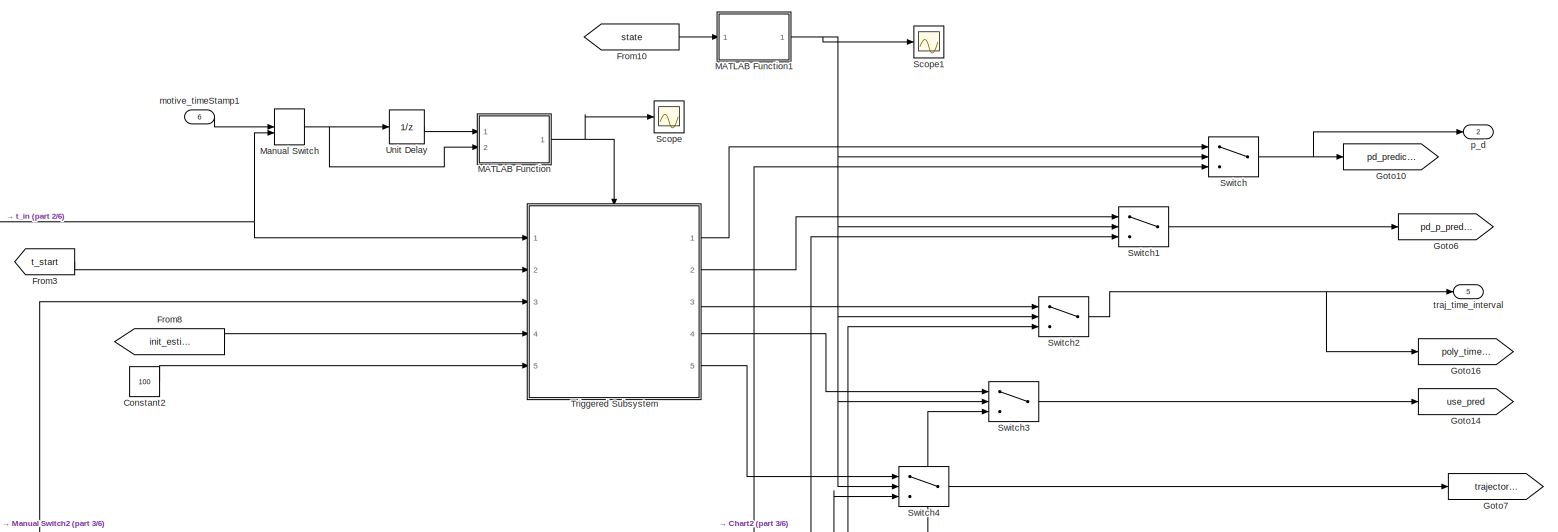
[diagram: root canvas - part 1/6, top center region]
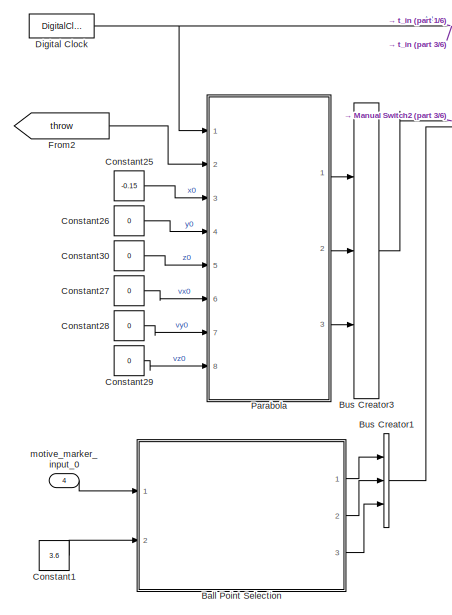
[diagram: root canvas - part 2/6, middle left region]
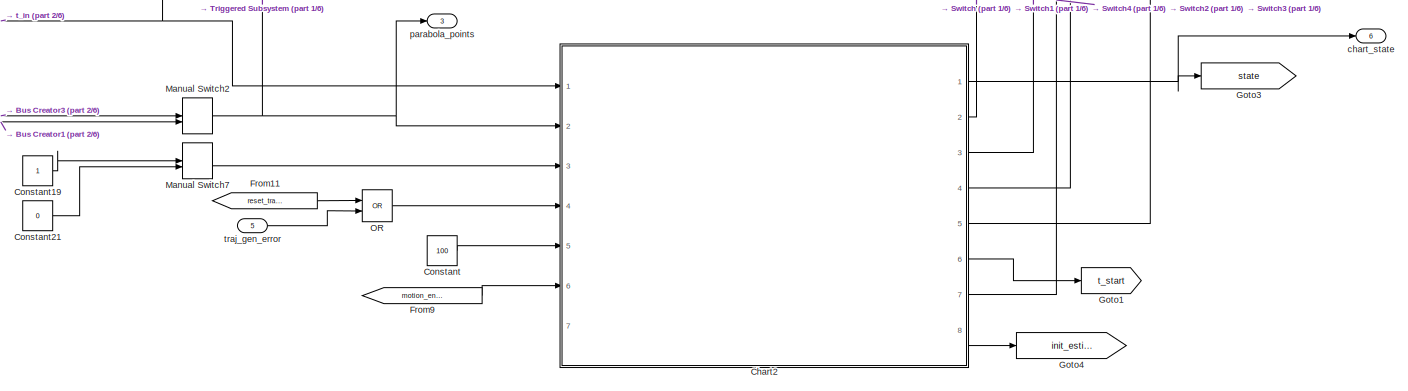
[diagram: root canvas - part 3/6, central region]
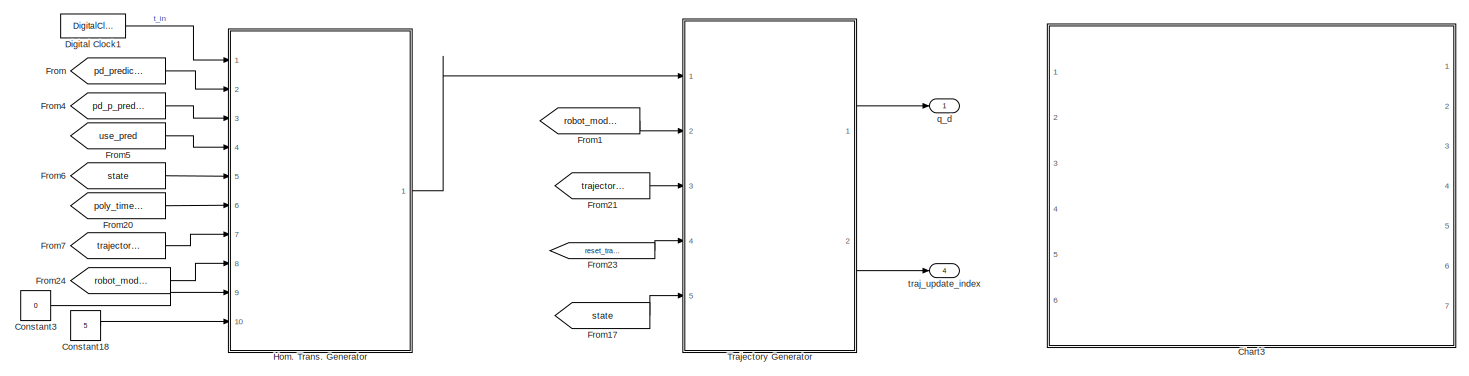
[diagram: root canvas - part 4/6, central region]
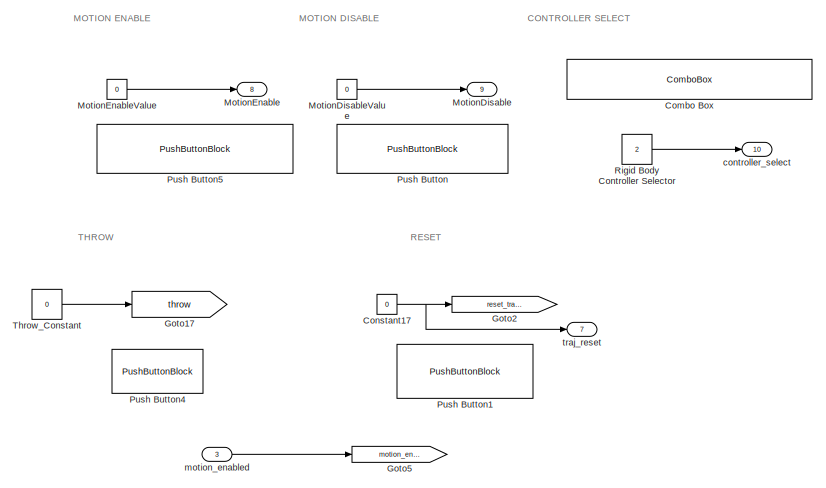
[diagram: root canvas - part 5/6, bottom center region]
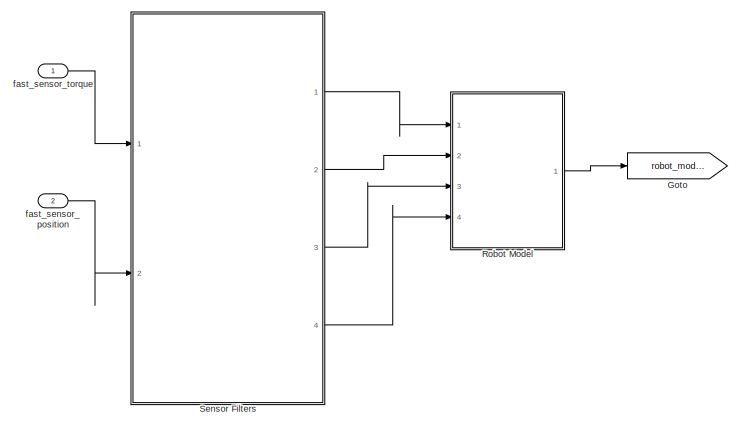
[diagram: root canvas - part 6/6, bottom left region]
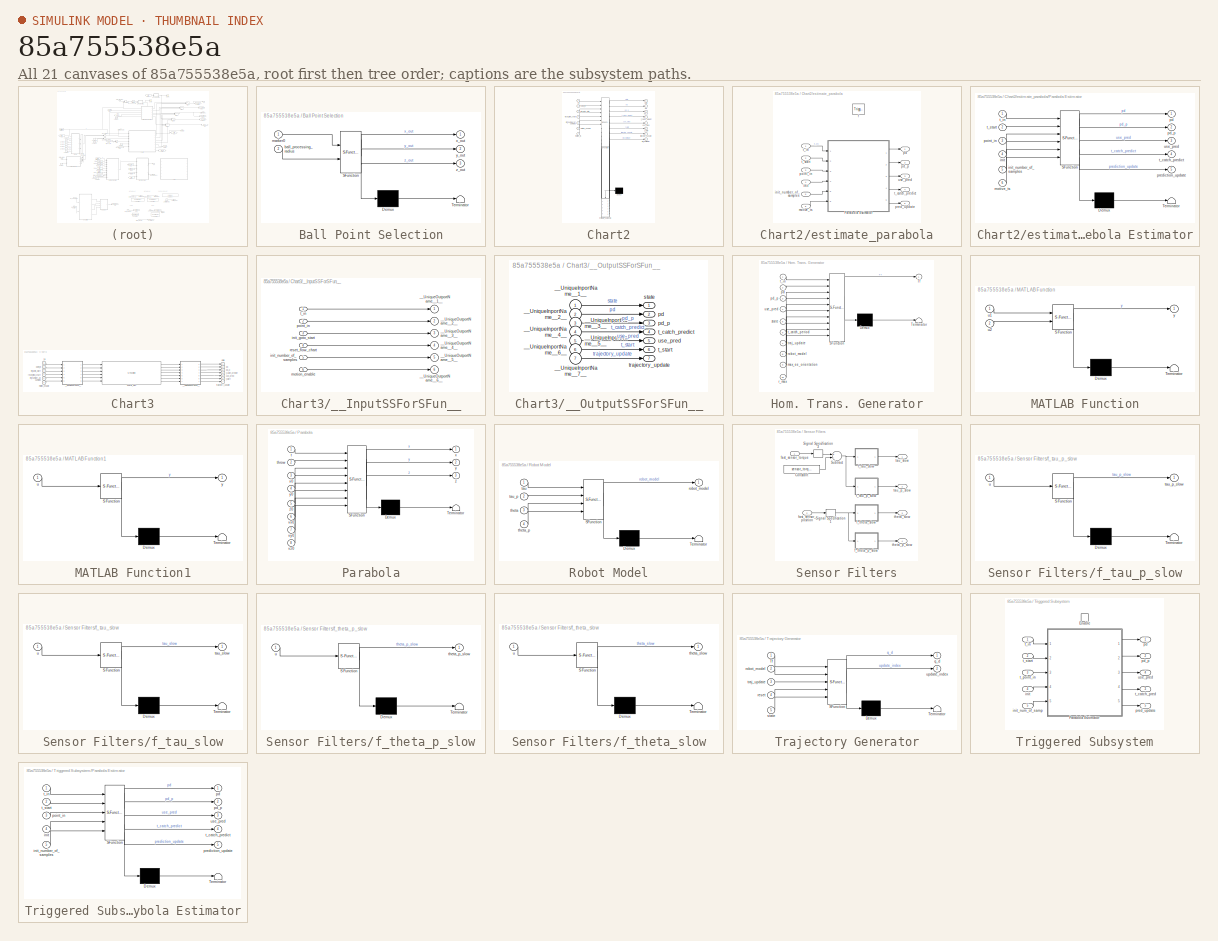
[diagram: thumbnail index - all 21 canvases of the model, root first then tree order]
MODEL slx_85a755538e5a
KIND model
CONFIG AbsTol = auto
CONFIG EnableMultiTasking = off
CONFIG FixedStep = param_controller.T_a
CONFIG InitFcn = iiwa_joint_trajectoryfollowingcontrol_rigid_parameters;
CONFIG MaxStep = auto
CONFIG MinStep = auto
CONFIG RelTol = 1e-3
CONFIG SampleTimeConstraint = Unconstrained
CONFIG Solver = FixedStepAuto
CONFIG SolverName = FixedStepAuto
CONFIG StartTime = 0.0
CONFIG StopTime = 10.0
BLOCK [SubSystem] Ball Point Selection
  ErrorFcn = Stateflow.Translate.translate
  PermitHierarchicalResolution = ExplicitOnly
  Ports = [2, 3]
  RequestExecContextInheritance = off
  SFBlockType = MATLAB Function
  TreatAsAtomicUnit = on
BLOCK [Demux] Ball Point Selection/ Demux 
  DisplayOption = bar
  Outputs = 1
  Ports = [1, 1]
BLOCK [S-Function] Ball Point Selection/ SFunction 
  EnableBusSupport = on
  FunctionName = sf_sfun
  PortCounts = [2 4]
  Ports = [2, 4]
  SFcnIsStateOwnerBlock = off
  SFunctionDeploymentMode = off
  Tag = Stateflow S-Function controller_ballcatcher_inv_kin_mind_timestamp 2
BLOCK [Terminator] Ball Point Selection/ Terminator 
BLOCK [Inport] Ball Point Selection/ball_processing_radius
  IconDisplay = Port number
  Port = 2
BLOCK [Inport] Ball Point Selection/marker0
  IconDisplay = Port number
BLOCK [Outport] Ball Point Selection/x_out
  IconDisplay = Port number
BLOCK [Outport] Ball Point Selection/y_out
  IconDisplay = Port number
  Port = 2
BLOCK [Outport] Ball Point Selection/z_out
  IconDisplay = Port number
  Port = 3
BLOCK [BusCreator] Bus Creator1
  DisplayOption = bar
  InheritFromInputs = on
  Inputs = 3
  Ports = [3, 1]
BLOCK [BusCreator] Bus Creator3
  DisplayOption = bar
  InheritFromInputs = on
  Inputs = 3
  Ports = [3, 1]
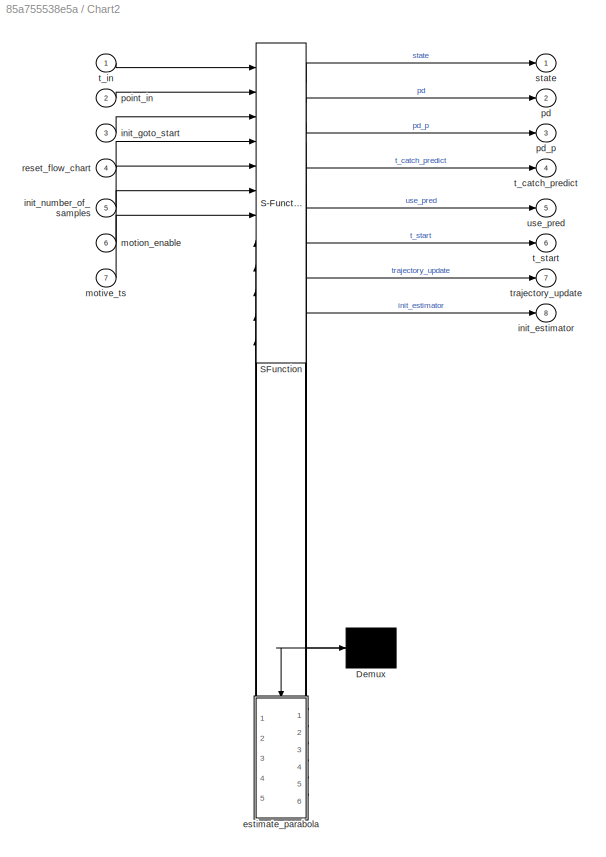
BLOCK [SubSystem] Chart2
  ErrorFcn = Stateflow.Translate.translate
  PermitHierarchicalResolution = ExplicitOnly
  Ports = [7, 8]
  RequestExecContextInheritance = off
  SFBlockType = Chart
  TreatAsAtomicUnit = on
BLOCK [Demux] Chart2/ Demux 
  DisplayOption = bar
  Outputs = 1
  Ports = [1, 1]
BLOCK [S-Function] Chart2/ SFunction 
  EnableBusSupport = on
  FunctionName = sf_sfun
  Parameters = positions
  PortCounts = [12 15]
  Ports = [12, 15]
  SFcnIsStateOwnerBlock = off
  SFunctionDeploymentMode = off
  Tag = Stateflow S-Function controller_ballcatcher_inv_kin_mind_timestamp 3
BLOCK [SubSystem] Chart2/estimate_parabola
  Commented = on
  Ports = [6, 5, 0, 1]
  PreDeleteFcn = Stateflow.SLINSF.SimulinkMan.removePreDeleteFcn
  RequestExecContextInheritance = off
  UndoDeleteFcn = Stateflow.SLINSF.SimulinkMan.restorePreDeleteFcn
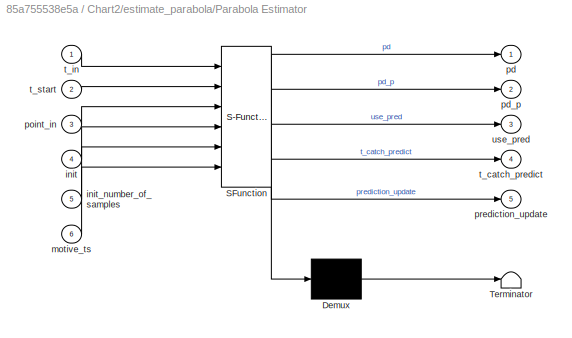
BLOCK [SubSystem] Chart2/estimate_parabola/Parabola Estimator
  ErrorFcn = Stateflow.Translate.translate
  PermitHierarchicalResolution = ExplicitOnly
  Ports = [6, 5]
  RequestExecContextInheritance = off
  SFBlockType = MATLAB Function
  TreatAsAtomicUnit = on
BLOCK [Demux] Chart2/estimate_parabola/Parabola Estimator/ Demux 
  DisplayOption = bar
  Outputs = 1
  Ports = [1, 1]
BLOCK [S-Function] Chart2/estimate_parabola/Parabola Estimator/ SFunction 
  EnableBusSupport = off
  FunctionName = sf_sfun
  Parameters = estimator_init_struct,height_of_catch,timing
  PortCounts = [6 6]
  Ports = [6, 6]
  SFcnIsStateOwnerBlock = off
  SFunctionDeploymentMode = off
  Tag = Stateflow S-Function controller_ballcatcher_inv_kin_mind_timestamp 4
BLOCK [Terminator] Chart2/estimate_parabola/Parabola Estimator/ Terminator 
BLOCK [Inport] Chart2/estimate_parabola/Parabola Estimator/init
  IconDisplay = Port number
  Port = 4
BLOCK [Inport] Chart2/estimate_parabola/Parabola Estimator/init_number_of_samples
  IconDisplay = Port number
  Port = 5
BLOCK [Inport] Chart2/estimate_parabola/Parabola Estimator/motive_ts
  IconDisplay = Port number
  Port = 6
BLOCK [Outport] Chart2/estimate_parabola/Parabola Estimator/pd
  IconDisplay = Port number
BLOCK [Outport] Chart2/estimate_parabola/Parabola Estimator/pd_p
  IconDisplay = Port number
  Port = 2
BLOCK [Inport] Chart2/estimate_parabola/Parabola Estimator/point_in
  IconDisplay = Port number
  Port = 3
BLOCK [Outport] Chart2/estimate_parabola/Parabola Estimator/prediction_update
  IconDisplay = Port number
  Port = 5
  VectorParamsAs1DForOutWhenUnconnected = on
BLOCK [Outport] Chart2/estimate_parabola/Parabola Estimator/t_catch_predict
  IconDisplay = Port number
  Port = 4
BLOCK [Inport] Chart2/estimate_parabola/Parabola Estimator/t_in
  IconDisplay = Port number
BLOCK [Inport] Chart2/estimate_parabola/Parabola Estimator/t_start
  IconDisplay = Port number
  Port = 2
BLOCK [Outport] Chart2/estimate_parabola/Parabola Estimator/use_pred
  IconDisplay = Port number
  Port = 3
BLOCK [TriggerPort] Chart2/estimate_parabola/f
  CopyFcn = Stateflow.SLINSF.SimulinkMan.removeBlockPreDeleteFcn
  Ports = []
  PreDeleteFcn = Stateflow.SLINSF.SimulinkMan.unsafePredeleteFcn
  StatesWhenEnabling = held
  TriggerType = function-call
  VariantControl = (inherit)
BLOCK [Inport] Chart2/estimate_parabola/init
  IconDisplay = Port number
  OutDataTypeStr = double
  Port = 4
  PortDimensions = 1
  SignalType = real
  VarSizeSig = No
BLOCK [Inport] Chart2/estimate_parabola/init_number_of_samples
  IconDisplay = Port number
  OutDataTypeStr = double
  Port = 5
  PortDimensions = 1
  SignalType = real
  VarSizeSig = No
BLOCK [Inport] Chart2/estimate_parabola/motive_ts
  IconDisplay = Port number
  OutDataTypeStr = double
  Port = 6
  PortDimensions = 1
  SignalType = real
  VarSizeSig = No
BLOCK [Outport] Chart2/estimate_parabola/pd
  IconDisplay = Port number
  PortDimensions = 3
  VectorParamsAs1DForOutWhenUnconnected = on
BLOCK [Outport] Chart2/estimate_parabola/pd_p
  IconDisplay = Port number
  Port = 2
  PortDimensions = 3
  VectorParamsAs1DForOutWhenUnconnected = on
BLOCK [Inport] Chart2/estimate_parabola/point_in
  IconDisplay = Port number
  OutDataTypeStr = double
  Port = 3
  PortDimensions = 3
  SignalType = real
  VarSizeSig = No
BLOCK [Outport] Chart2/estimate_parabola/pred_update
  IconDisplay = Port number
  Port = 5
  VectorParamsAs1DForOutWhenUnconnected = on
BLOCK [Outport] Chart2/estimate_parabola/t_catch_predict
  IconDisplay = Port number
  Port = 4
  PortDimensions = [1,2]
  VectorParamsAs1DForOutWhenUnconnected = on
BLOCK [Inport] Chart2/estimate_parabola/t_in
  IconDisplay = Port number
  OutDataTypeStr = double
  PortDimensions = 1
  SignalType = real
  VarSizeSig = No
BLOCK [Inport] Chart2/estimate_parabola/t_start
  IconDisplay = Port number
  OutDataTypeStr = double
  Port = 2
  PortDimensions = 1
  SignalType = real
  VarSizeSig = No
BLOCK [Outport] Chart2/estimate_parabola/use_pred
  IconDisplay = Port number
  Port = 3
  PortDimensions = 1
  VectorParamsAs1DForOutWhenUnconnected = on
BLOCK [Outport] Chart2/init_estimator
  IconDisplay = Port number
  Port = 8
BLOCK [Inport] Chart2/init_goto_start
  IconDisplay = Port number
  Port = 3
BLOCK [Inport] Chart2/init_number_of_samples
  IconDisplay = Port number
  Port = 5
BLOCK [Inport] Chart2/motion_enable
  IconDisplay = Port number
  Port = 6
BLOCK [Inport] Chart2/motive_ts
  IconDisplay = Port number
  Port = 7
BLOCK [Outport] Chart2/pd
  IconDisplay = Port number
  Port = 2
  VectorParamsAs1DForOutWhenUnconnected = on
BLOCK [Outport] Chart2/pd_p
  IconDisplay = Port number
  Port = 3
  VectorParamsAs1DForOutWhenUnconnected = on
BLOCK [Inport] Chart2/point_in
  IconDisplay = Port number
  Port = 2
BLOCK [Inport] Chart2/reset_flow_chart
  IconDisplay = Port number
  Port = 4
BLOCK [Outport] Chart2/state
  IconDisplay = Port number
  VectorParamsAs1DForOutWhenUnconnected = on
BLOCK [Outport] Chart2/t_catch_predict
  IconDisplay = Port number
  Port = 4
  VectorParamsAs1DForOutWhenUnconnected = on
BLOCK [Inport] Chart2/t_in
  IconDisplay = Port number
BLOCK [Outport] Chart2/t_start
  IconDisplay = Port number
  Port = 6
  VectorParamsAs1DForOutWhenUnconnected = on
BLOCK [Outport] Chart2/trajectory_update
  IconDisplay = Port number
  Port = 7
  VectorParamsAs1DForOutWhenUnconnected = on
BLOCK [Outport] Chart2/use_pred
  IconDisplay = Port number
  Port = 5
  VectorParamsAs1DForOutWhenUnconnected = on
BLOCK [SubSystem] Chart3
  Ports = [6, 7]
  RequestExecContextInheritance = off
BLOCK [S-Function] Chart3/Chart1_sfcn
  CopyFcn = if ~strcmp(get_param(gcb,'Linkstatus'),'none') && ...\n~strcmp(get_param(gcb,'Linkstatus'),'implicit')      \n  set_param(gcb,'LinkStatus','none');                \nend
  EnableBusSupport = off
  FunctionName = Chart1_sf
  Ports = [6, 7]
  SFcnIsStateOwnerBlock = off
  SFunctionDeploymentMode = off
BLOCK [SubSystem] Chart3/__InputSSForSFun__
  PermitHierarchicalResolution = ExplicitOnly
  Ports = [6, 6]
  RequestExecContextInheritance = off
BLOCK [Outport] Chart3/__InputSSForSFun__/__UniqueOutportName__1__
  IconDisplay = Port number
BLOCK [Outport] Chart3/__InputSSForSFun__/__UniqueOutportName__2__
  IconDisplay = Port number
  Port = 2
BLOCK [Outport] Chart3/__InputSSForSFun__/__UniqueOutportName__3__
  IconDisplay = Port number
  Port = 3
BLOCK [Outport] Chart3/__InputSSForSFun__/__UniqueOutportName__4__
  IconDisplay = Port number
  Port = 4
BLOCK [Outport] Chart3/__InputSSForSFun__/__UniqueOutportName__5__
  IconDisplay = Port number
  Port = 5
BLOCK [Outport] Chart3/__InputSSForSFun__/__UniqueOutportName__6__
  IconDisplay = Port number
  Port = 6
BLOCK [Inport] Chart3/__InputSSForSFun__/init_goto_start
  IconDisplay = Port number
  Port = 3
BLOCK [Inport] Chart3/__InputSSForSFun__/init_number_of_samples
  IconDisplay = Port number
  Port = 5
BLOCK [Inport] Chart3/__InputSSForSFun__/motion_enable
  IconDisplay = Port number
  Port = 6
BLOCK [Inport] Chart3/__InputSSForSFun__/point_in
  IconDisplay = Port number
  Port = 2
BLOCK [Inport] Chart3/__InputSSForSFun__/reset_flow_chart
  IconDisplay = Port number
  Port = 4
BLOCK [Inport] Chart3/__InputSSForSFun__/t_in
  IconDisplay = Port number
BLOCK [SubSystem] Chart3/__OutputSSForSFun__
  PermitHierarchicalResolution = ExplicitOnly
  Ports = [7, 7]
  RequestExecContextInheritance = off
BLOCK [Inport] Chart3/__OutputSSForSFun__/__UniqueInportName__1__
  IconDisplay = Port number
BLOCK [Inport] Chart3/__OutputSSForSFun__/__UniqueInportName__2__
  IconDisplay = Port number
  Port = 2
BLOCK [Inport] Chart3/__OutputSSForSFun__/__UniqueInportName__3__
  IconDisplay = Port number
  Port = 3
BLOCK [Inport] Chart3/__OutputSSForSFun__/__UniqueInportName__4__
  IconDisplay = Port number
  Port = 4
BLOCK [Inport] Chart3/__OutputSSForSFun__/__UniqueInportName__5__
  IconDisplay = Port number
  Port = 5
BLOCK [Inport] Chart3/__OutputSSForSFun__/__UniqueInportName__6__
  IconDisplay = Port number
  Port = 6
BLOCK [Inport] Chart3/__OutputSSForSFun__/__UniqueInportName__7__
  IconDisplay = Port number
  Port = 7
BLOCK [Outport] Chart3/__OutputSSForSFun__/pd
  IconDisplay = Port number
  Port = 2
  VectorParamsAs1DForOutWhenUnconnected = on
BLOCK [Outport] Chart3/__OutputSSForSFun__/pd_p
  IconDisplay = Port number
  Port = 3
  VectorParamsAs1DForOutWhenUnconnected = on
BLOCK [Outport] Chart3/__OutputSSForSFun__/state
  IconDisplay = Port number
  VectorParamsAs1DForOutWhenUnconnected = on
BLOCK [Outport] Chart3/__OutputSSForSFun__/t_catch_predict
  IconDisplay = Port number
  Port = 4
  VectorParamsAs1DForOutWhenUnconnected = on
BLOCK [Outport] Chart3/__OutputSSForSFun__/t_start
  IconDisplay = Port number
  Port = 6
  VectorParamsAs1DForOutWhenUnconnected = on
BLOCK [Outport] Chart3/__OutputSSForSFun__/trajectory_update
  IconDisplay = Port number
  Port = 7
  VectorParamsAs1DForOutWhenUnconnected = on
BLOCK [Outport] Chart3/__OutputSSForSFun__/use_pred
  IconDisplay = Port number
  Port = 5
  VectorParamsAs1DForOutWhenUnconnected = on
BLOCK [Inport] Chart3/init_goto_start
  IconDisplay = Port number
  Port = 3
BLOCK [Inport] Chart3/init_number_of_samples
  IconDisplay = Port number
  Port = 5
BLOCK [Inport] Chart3/motion_enable
  IconDisplay = Port number
  Port = 6
BLOCK [Outport] Chart3/pd
  IconDisplay = Port number
  Port = 2
  VectorParamsAs1DForOutWhenUnconnected = on
BLOCK [Outport] Chart3/pd_p
  IconDisplay = Port number
  Port = 3
  VectorParamsAs1DForOutWhenUnconnected = on
BLOCK [Inport] Chart3/point_in
  IconDisplay = Port number
  Port = 2
BLOCK [Inport] Chart3/reset_flow_chart
  IconDisplay = Port number
  Port = 4
BLOCK [Outport] Chart3/state
  IconDisplay = Port number
  VectorParamsAs1DForOutWhenUnconnected = on
BLOCK [Outport] Chart3/t_catch_predict
  IconDisplay = Port number
  Port = 4
  VectorParamsAs1DForOutWhenUnconnected = on
BLOCK [Inport] Chart3/t_in
  IconDisplay = Port number
BLOCK [Outport] Chart3/t_start
  IconDisplay = Port number
  Port = 6
  VectorParamsAs1DForOutWhenUnconnected = on
BLOCK [Outport] Chart3/trajectory_update
  IconDisplay = Port number
  Port = 7
  VectorParamsAs1DForOutWhenUnconnected = on
BLOCK [Outport] Chart3/use_pred
  IconDisplay = Port number
  Port = 5
  VectorParamsAs1DForOutWhenUnconnected = on
BLOCK [ComboBox] Combo Box
  SelectedLabel = 2: Joint-based E/A Linearization
  WebBlockId = 3098
BLOCK [Constant] Constant
  Value = 100
BLOCK [Constant] Constant1
  Value = 3.6
BLOCK [Constant] Constant17
  Value = 0
BLOCK [Constant] Constant18
  Value = 5
BLOCK [Constant] Constant19
BLOCK [Constant] Constant2
  Value = 100
BLOCK [Constant] Constant21
  Value = 0
BLOCK [Constant] Constant25
  Value = -0.15
BLOCK [Constant] Constant26
  Value = 0
BLOCK [Constant] Constant27
  Value = 0
BLOCK [Constant] Constant28
  Value = 0
BLOCK [Constant] Constant29
  Value = 0
BLOCK [Constant] Constant3
  Value = 0
BLOCK [Constant] Constant30
  Value = 0
BLOCK [DigitalClock] Digital Clock
  SampleTime = timing.T_optitrack
BLOCK [DigitalClock] Digital Clock1
  SampleTime = timing.T_optiTask
BLOCK [From] From
  GotoTag = pd_predicted
BLOCK [From] From1
  GotoTag = robot_model
BLOCK [From] From10
  GotoTag = state
BLOCK [From] From11
  GotoTag = reset_trajectory
BLOCK [From] From17
  GotoTag = state
BLOCK [From] From2
  GotoTag = throw
BLOCK [From] From20
  GotoTag = poly_timepoints
BLOCK [From] From21
  GotoTag = trajectory_update
BLOCK [From] From23
  GotoTag = reset_trajectory
BLOCK [From] From24
  GotoTag = robot_model
BLOCK [From] From3
  GotoTag = t_start
BLOCK [From] From4
  GotoTag = pd_p_predicted
BLOCK [From] From5
  GotoTag = use_pred
BLOCK [From] From6
  GotoTag = state
BLOCK [From] From7
  GotoTag = trajectory_update
BLOCK [From] From8
  GotoTag = init_estimator
BLOCK [From] From9
  GotoTag = motion_enabled
BLOCK [Goto] Goto
  GotoTag = robot_model
BLOCK [Goto] Goto1
  GotoTag = t_start
BLOCK [Goto] Goto10
  GotoTag = pd_predicted
BLOCK [Goto] Goto14
  GotoTag = use_pred
BLOCK [Goto] Goto16
  GotoTag = poly_timepoints
BLOCK [Goto] Goto17
  GotoTag = throw
BLOCK [Goto] Goto2
  GotoTag = reset_trajectory
BLOCK [Goto] Goto3
  GotoTag = state
BLOCK [Goto] Goto4
  GotoTag = init_estimator
BLOCK [Goto] Goto5
  GotoTag = motion_enabled
BLOCK [Goto] Goto6
  GotoTag = pd_p_predicted
BLOCK [Goto] Goto7
  GotoTag = trajectory_update
BLOCK [SubSystem] Hom. Trans. Generator
  ErrorFcn = Stateflow.Translate.translate
  PermitHierarchicalResolution = ExplicitOnly
  Ports = [10, 1]
  RequestExecContextInheritance = off
  SFBlockType = MATLAB Function
  TreatAsAtomicUnit = on
BLOCK [Demux] Hom. Trans. Generator/ Demux 
  DisplayOption = bar
  Outputs = 1
  Ports = [1, 1]
BLOCK [S-Function] Hom. Trans. Generator/ SFunction 
  EnableBusSupport = on
  FunctionName = sf_sfun
  PortCounts = [10 2]
  Ports = [10, 2]
  SFcnIsStateOwnerBlock = off
  SFunctionDeploymentMode = off
  Tag = Stateflow S-Function controller_ballcatcher_inv_kin_mind_timestamp 8
BLOCK [Terminator] Hom. Trans. Generator/ Terminator 
BLOCK [Outport] Hom. Trans. Generator/Tf
  IconDisplay = Port number
  VectorParamsAs1DForOutWhenUnconnected = on
BLOCK [Inport] Hom. Trans. Generator/max_ee_orientation
  IconDisplay = Port number
  Port = 9
BLOCK [Inport] Hom. Trans. Generator/pd
  IconDisplay = Port number
  Port = 2
BLOCK [Inport] Hom. Trans. Generator/pd_p
  IconDisplay = Port number
  Port = 3
BLOCK [Inport] Hom. Trans. Generator/r_max
  IconDisplay = Port number
  Port = 10
BLOCK [Inport] Hom. Trans. Generator/robot_model
  IconDisplay = Port number
  Port = 8
BLOCK [Inport] Hom. Trans. Generator/state
  IconDisplay = Port number
  Port = 5
BLOCK [Inport] Hom. Trans. Generator/t_catch_period
  IconDisplay = Port number
  Port = 6
BLOCK [Inport] Hom. Trans. Generator/t_in
  IconDisplay = Port number
BLOCK [Inport] Hom. Trans. Generator/traj_update
  IconDisplay = Port number
  Port = 7
BLOCK [Inport] Hom. Trans. Generator/use_pred
  IconDisplay = Port number
  Port = 4
BLOCK [SubSystem] MATLAB Function
  ErrorFcn = Stateflow.Translate.translate
  PermitHierarchicalResolution = ExplicitOnly
  Ports = [2, 1]
  RequestExecContextInheritance = off
  SFBlockType = MATLAB Function
  TreatAsAtomicUnit = on
BLOCK [Demux] MATLAB Function/ Demux 
  Outputs = 1
  Ports = [1, 1]
BLOCK [S-Function] MATLAB Function/ SFunction 
  EnableBusSupport = on
  FunctionName = sf_sfun
  PortCounts = [2 2]
  Ports = [2, 2]
  SFcnIsStateOwnerBlock = off
  SFunctionDeploymentMode = off
  Tag = Stateflow S-Function controller_ballcatcher_inv_kin_mind_timestamp 5
BLOCK [Terminator] MATLAB Function/ Terminator 
BLOCK [Inport] MATLAB Function/u1
  IconDisplay = Port number
BLOCK [Inport] MATLAB Function/u2
  IconDisplay = Port number
  Port = 2
BLOCK [Outport] MATLAB Function/y
  IconDisplay = Port number
BLOCK [SubSystem] MATLAB Function1
  ErrorFcn = Stateflow.Translate.translate
  PermitHierarchicalResolution = ExplicitOnly
  Ports = [1, 1]
  RequestExecContextInheritance = off
  SFBlockType = MATLAB Function
  TreatAsAtomicUnit = on
BLOCK [Demux] MATLAB Function1/ Demux 
  Outputs = 1
  Ports = [1, 1]
BLOCK [S-Function] MATLAB Function1/ SFunction 
  EnableBusSupport = on
  FunctionName = sf_sfun
  PortCounts = [1 2]
  Ports = [1, 2]
  SFcnIsStateOwnerBlock = off
  SFunctionDeploymentMode = off
  Tag = Stateflow S-Function controller_ballcatcher_inv_kin_mind_timestamp 9
BLOCK [Terminator] MATLAB Function1/ Terminator 
BLOCK [Inport] MATLAB Function1/u
  IconDisplay = Port number
BLOCK [Outport] MATLAB Function1/y
  IconDisplay = Port number
BLOCK [ManualSwitch] Manual Switch
  CurrentSetting = 0
BLOCK [ManualSwitch] Manual Switch2
BLOCK [ManualSwitch] Manual Switch7
  CurrentSetting = 0
BLOCK [Outport] MotionDisable
  IconDisplay = Port number
  Port = 9
BLOCK [Constant] MotionDisableValue
  Value = 0
BLOCK [Outport] MotionEnable
  IconDisplay = Port number
  Port = 8
BLOCK [Constant] MotionEnableValue
  Value = 0
BLOCK [Logic] OR
  AllPortsSameDT = off
  IconShape = distinctive
  Operator = OR
  OutDataTypeStr = boolean
  Ports = [2, 1]
BLOCK [SubSystem] Parabola
  ErrorFcn = Stateflow.Translate.translate
  PermitHierarchicalResolution = ExplicitOnly
  Ports = [8, 3]
  RequestExecContextInheritance = off
  SFBlockType = MATLAB Function
  TreatAsAtomicUnit = on
BLOCK [Demux] Parabola/ Demux 
  DisplayOption = bar
  Outputs = 1
  Ports = [1, 1]
BLOCK [S-Function] Parabola/ SFunction 
  EnableBusSupport = on
  FunctionName = sf_sfun
  Parameters = optitrack_data,param_controller,timing
  PortCounts = [8 4]
  Ports = [8, 4]
  SFcnIsStateOwnerBlock = off
  SFunctionDeploymentMode = off
  Tag = Stateflow S-Function controller_ballcatcher_inv_kin_mind_timestamp 1
BLOCK [Terminator] Parabola/ Terminator 
BLOCK [Inport] Parabola/t
  IconDisplay = Port number
BLOCK [Inport] Parabola/throw
  IconDisplay = Port number
  Port = 2
BLOCK [Inport] Parabola/vx0
  IconDisplay = Port number
  Port = 6
BLOCK [Inport] Parabola/vy0
  IconDisplay = Port number
  Port = 7
BLOCK [Inport] Parabola/vz0
  IconDisplay = Port number
  Port = 8
BLOCK [Outport] Parabola/x
  IconDisplay = Port number
BLOCK [Inport] Parabola/x0
  IconDisplay = Port number
  Port = 3
BLOCK [Outport] Parabola/y
  IconDisplay = Port number
  Port = 2
BLOCK [Inport] Parabola/y0
  IconDisplay = Port number
  Port = 4
BLOCK [Outport] Parabola/z
  IconDisplay = Port number
  Port = 3
  VectorParamsAs1DForOutWhenUnconnected = on
BLOCK [Inport] Parabola/z0
  IconDisplay = Port number
  Port = 5
BLOCK [PushButtonBlock] Push Button
  ButtonText = Motion disable
  WebBlockId = 3092
BLOCK [PushButtonBlock] Push Button1
  ButtonText = Reset Trajectory
  WebBlockId = 1355
BLOCK [PushButtonBlock] Push Button4
  ButtonText = Throw
  WebBlockId = 2019
BLOCK [PushButtonBlock] Push Button5
  ButtonText = Motion enable
  WebBlockId = 3093
BLOCK [Constant] Rigid Body Controller Selector
  OutDataTypeStr = uint32
  Value = 2
BLOCK [SubSystem] Robot Model
  ErrorFcn = Stateflow.Translate.translate
  PermitHierarchicalResolution = ExplicitOnly
  Ports = [4, 1]
  RequestExecContextInheritance = off
  SFBlockType = MATLAB Function
  TreatAsAtomicUnit = on
BLOCK [Demux] Robot Model/ Demux 
  DisplayOption = bar
  Outputs = 1
  Ports = [1, 1]
BLOCK [S-Function] Robot Model/ SFunction 
  EnableBusSupport = on
  FunctionName = sf_sfun
  Parameters = param_controller,param_robot
  PortCounts = [4 2]
  Ports = [4, 2]
  SFcnIsStateOwnerBlock = off
  SFunctionDeploymentMode = off
  Tag = Stateflow S-Function controller_ballcatcher_inv_kin_mind_timestamp 16
BLOCK [Terminator] Robot Model/ Terminator 
BLOCK [Outport] Robot Model/robot_model
  IconDisplay = Port number
BLOCK [Inport] Robot Model/tau
  IconDisplay = Port number
BLOCK [Inport] Robot Model/tau_p
  IconDisplay = Port number
  Port = 2
BLOCK [Inport] Robot Model/theta
  IconDisplay = Port number
  Port = 3
BLOCK [Inport] Robot Model/theta_p
  IconDisplay = Port number
  Port = 4
BLOCK [Scope] Scope
  Floating = off
  NumInputPorts = 1
  Ports = [1]
  ScopeSpecificationString = Simulink.scopes.TimeScopeBlockCfg('CurrentConfiguration', extmgr.ConfigurationSet(extmgr.Configuration('Core','General UI',true),extmgr.Configuration('Core','Source UI',true),extmgr.Configuration('Sources','WiredSimulink',true),extmgr.Configuration('Visuals','Time Domain',true,'SerializedDisplays',{struct('MinYLimReal','-0.125','MaxYLimReal','1.125','YLabelReal','','MinYLimMag','0.00000','MaxYLimM...<+1352ch>
BLOCK [Scope] Scope1
  Floating = off
  NumInputPorts = 1
  Ports = [1]
  ScopeSpecificationString = Simulink.scopes.TimeScopeBlockCfg('CurrentConfiguration', extmgr.ConfigurationSet(extmgr.Configuration('Core','General UI',true),extmgr.Configuration('Core','Source UI',true),extmgr.Configuration('Sources','WiredSimulink',true,'DataLoggingVariableName','ScopeData1'),extmgr.Configuration('Visuals','Time Domain',true,'SerializedDisplays',{struct('MinYLimReal','-0.125','MaxYLimReal','1.125','YLabelRe...<+1391ch>
BLOCK [SubSystem] Sensor Filters
  Ports = [2, 4]
  RequestExecContextInheritance = off
BLOCK [Constant] Sensor Filters/Constant
  Value = sensor_torque_offset
BLOCK [SignalSpecification] Sensor Filters/Signal Specification1
  Dimensions = 7
BLOCK [SignalSpecification] Sensor Filters/Signal Specification3
  Dimensions = 7
BLOCK [Sum] Sensor Filters/Subtract
  InputSameDT = off
  Inputs = +-
  OutDataTypeStr = Inherit: Inherit via internal rule
  Ports = [2, 1]
  SaturateOnIntegerOverflow = off
BLOCK [SubSystem] Sensor Filters/f_tau_p_slow
  ErrorFcn = Stateflow.Translate.translate
  PermitHierarchicalResolution = ExplicitOnly
  Ports = [1, 1]
  RequestExecContextInheritance = off
  SFBlockType = MATLAB Function
  TreatAsAtomicUnit = on
BLOCK [Demux] Sensor Filters/f_tau_p_slow/ Demux 
  DisplayOption = bar
  Outputs = 1
  Ports = [1, 1]
BLOCK [S-Function] Sensor Filters/f_tau_p_slow/ SFunction 
  EnableBusSupport = on
  FunctionName = sf_sfun
  Parameters = filter_tau_p_slow_T_1,param_controller
  PortCounts = [1 2]
  Ports = [1, 2]
  SFcnIsStateOwnerBlock = off
  SFunctionDeploymentMode = off
  Tag = Stateflow S-Function controller_ballcatcher_inv_kin_mind_timestamp 22
BLOCK [Terminator] Sensor Filters/f_tau_p_slow/ Terminator 
BLOCK [Outport] Sensor Filters/f_tau_p_slow/tau_p_slow
  IconDisplay = Port number
BLOCK [Inport] Sensor Filters/f_tau_p_slow/u
  IconDisplay = Port number
BLOCK [SubSystem] Sensor Filters/f_tau_slow
  ErrorFcn = Stateflow.Translate.translate
  PermitHierarchicalResolution = ExplicitOnly
  Ports = [1, 1]
  RequestExecContextInheritance = off
  SFBlockType = MATLAB Function
  TreatAsAtomicUnit = on
BLOCK [Demux] Sensor Filters/f_tau_slow/ Demux 
  DisplayOption = bar
  Outputs = 1
  Ports = [1, 1]
BLOCK [S-Function] Sensor Filters/f_tau_slow/ SFunction 
  EnableBusSupport = on
  FunctionName = sf_sfun
  Parameters = filter_tau_slow_T_1,param_controller
  PortCounts = [1 2]
  Ports = [1, 2]
  SFcnIsStateOwnerBlock = off
  SFunctionDeploymentMode = off
  Tag = Stateflow S-Function controller_ballcatcher_inv_kin_mind_timestamp 12
BLOCK [Terminator] Sensor Filters/f_tau_slow/ Terminator 
BLOCK [Outport] Sensor Filters/f_tau_slow/tau_slow
  IconDisplay = Port number
BLOCK [Inport] Sensor Filters/f_tau_slow/u
  IconDisplay = Port number
BLOCK [SubSystem] Sensor Filters/f_theta_p_slow
  ErrorFcn = Stateflow.Translate.translate
  PermitHierarchicalResolution = ExplicitOnly
  Ports = [1, 1]
  RequestExecContextInheritance = off
  SFBlockType = MATLAB Function
  TreatAsAtomicUnit = on
BLOCK [Demux] Sensor Filters/f_theta_p_slow/ Demux 
  DisplayOption = bar
  Outputs = 1
  Ports = [1, 1]
BLOCK [S-Function] Sensor Filters/f_theta_p_slow/ SFunction 
  EnableBusSupport = on
  FunctionName = sf_sfun
  Parameters = filter_theta_p_slow_T_1,param_controller
  PortCounts = [1 2]
  Ports = [1, 2]
  SFcnIsStateOwnerBlock = off
  SFunctionDeploymentMode = off
  Tag = Stateflow S-Function controller_ballcatcher_inv_kin_mind_timestamp 23
BLOCK [Terminator] Sensor Filters/f_theta_p_slow/ Terminator 
BLOCK [Outport] Sensor Filters/f_theta_p_slow/theta_p_slow
  IconDisplay = Port number
BLOCK [Inport] Sensor Filters/f_theta_p_slow/u
  IconDisplay = Port number
BLOCK [SubSystem] Sensor Filters/f_theta_slow
  ErrorFcn = Stateflow.Translate.translate
  PermitHierarchicalResolution = ExplicitOnly
  Ports = [1, 1]
  RequestExecContextInheritance = off
  SFBlockType = MATLAB Function
  TreatAsAtomicUnit = on
BLOCK [Demux] Sensor Filters/f_theta_slow/ Demux 
  DisplayOption = bar
  Outputs = 1
  Ports = [1, 1]
BLOCK [S-Function] Sensor Filters/f_theta_slow/ SFunction 
  EnableBusSupport = on
  FunctionName = sf_sfun
  Parameters = filter_theta_slow_T_1,param_controller
  PortCounts = [1 2]
  Ports = [1, 2]
  SFcnIsStateOwnerBlock = off
  SFunctionDeploymentMode = off
  Tag = Stateflow S-Function controller_ballcatcher_inv_kin_mind_timestamp 21
BLOCK [Terminator] Sensor Filters/f_theta_slow/ Terminator 
BLOCK [Outport] Sensor Filters/f_theta_slow/theta_slow
  IconDisplay = Port number
BLOCK [Inport] Sensor Filters/f_theta_slow/u
  IconDisplay = Port number
BLOCK [Inport] Sensor Filters/fast_sensor_position
  IconDisplay = Port number
  Port = 2
BLOCK [Inport] Sensor Filters/fast_sensor_torque
  IconDisplay = Port number
BLOCK [Outport] Sensor Filters/tau_p_slow
  IconDisplay = Port number
  Port = 2
BLOCK [Outport] Sensor Filters/tau_slow
  IconDisplay = Port number
BLOCK [Outport] Sensor Filters/theta_p_slow
  IconDisplay = Port number
  Port = 4
BLOCK [Outport] Sensor Filters/theta_slow
  IconDisplay = Port number
  Port = 3
BLOCK [Switch] Switch
  InputSameDT = off
  SaturateOnIntegerOverflow = off
BLOCK [Switch] Switch1
  SaturateOnIntegerOverflow = off
BLOCK [Switch] Switch2
  InputSameDT = off
  SaturateOnIntegerOverflow = off
BLOCK [Switch] Switch3
  InputSameDT = off
  SaturateOnIntegerOverflow = off
BLOCK [Switch] Switch4
  InputSameDT = off
  SaturateOnIntegerOverflow = off
BLOCK [Constant] Throw_Constant
  Value = 0
BLOCK [SubSystem] Trajectory Generator
  ErrorFcn = Stateflow.Translate.translate
  PermitHierarchicalResolution = ExplicitOnly
  Ports = [5, 2]
  RequestExecContextInheritance = off
  SFBlockType = MATLAB Function
  TreatAsAtomicUnit = on
BLOCK [Demux] Trajectory Generator/ Demux 
  DisplayOption = bar
  Outputs = 1
  Ports = [1, 1]
BLOCK [S-Function] Trajectory Generator/ SFunction 
  EnableBusSupport = on
  FunctionName = sf_sfun
  Parameters = param_robot,positions
  PortCounts = [5 3]
  Ports = [5, 3]
  SFcnIsStateOwnerBlock = off
  SFunctionDeploymentMode = off
  Tag = Stateflow S-Function controller_ballcatcher_inv_kin_mind_timestamp 7
BLOCK [Terminator] Trajectory Generator/ Terminator 
BLOCK [Inport] Trajectory Generator/Tf
  IconDisplay = Port number
BLOCK [Outport] Trajectory Generator/q_d
  IconDisplay = Port number
BLOCK [Inport] Trajectory Generator/reset
  IconDisplay = Port number
  Port = 4
BLOCK [Inport] Trajectory Generator/robot_model
  IconDisplay = Port number
  Port = 2
BLOCK [Inport] Trajectory Generator/state
  IconDisplay = Port number
  Port = 5
BLOCK [Inport] Trajectory Generator/traj_update
  IconDisplay = Port number
  Port = 3
BLOCK [Outport] Trajectory Generator/update_index
  IconDisplay = Port number
  Port = 2
BLOCK [SubSystem] Triggered Subsystem
  Ports = [5, 5, 1]
  RequestExecContextInheritance = off
  TreatAsAtomicUnit = on
BLOCK [EnablePort] Triggered Subsystem/Enable
  Ports = []
BLOCK [SubSystem] Triggered Subsystem/Parabola Estimator
  ErrorFcn = Stateflow.Translate.translate
  PermitHierarchicalResolution = ExplicitOnly
  Ports = [5, 5]
  RequestExecContextInheritance = off
  SFBlockType = MATLAB Function
  TreatAsAtomicUnit = on
BLOCK [Demux] Triggered Subsystem/Parabola Estimator/ Demux 
  DisplayOption = bar
  Outputs = 1
  Ports = [1, 1]
BLOCK [S-Function] Triggered Subsystem/Parabola Estimator/ SFunction 
  EnableBusSupport = on
  FunctionName = sf_sfun
  Parameters = estimator_init_struct,height_of_catch,timing
  PortCounts = [5 6]
  Ports = [5, 6]
  SFcnIsStateOwnerBlock = off
  SFunctionDeploymentMode = off
  Tag = Stateflow S-Function controller_ballcatcher_inv_kin_mind_timestamp 6
BLOCK [Terminator] Triggered Subsystem/Parabola Estimator/ Terminator 
BLOCK [Inport] Triggered Subsystem/Parabola Estimator/init
  IconDisplay = Port number
  Port = 4
BLOCK [Inport] Triggered Subsystem/Parabola Estimator/init_number_of_samples
  IconDisplay = Port number
  Port = 5
BLOCK [Outport] Triggered Subsystem/Parabola Estimator/pd
  IconDisplay = Port number
BLOCK [Outport] Triggered Subsystem/Parabola Estimator/pd_p
  IconDisplay = Port number
  Port = 2
BLOCK [Inport] Triggered Subsystem/Parabola Estimator/point_in
  IconDisplay = Port number
  Port = 3
BLOCK [Outport] Triggered Subsystem/Parabola Estimator/prediction_update
  IconDisplay = Port number
  Port = 5
  VectorParamsAs1DForOutWhenUnconnected = on
BLOCK [Outport] Triggered Subsystem/Parabola Estimator/t_catch_predict
  IconDisplay = Port number
  Port = 4
BLOCK [Inport] Triggered Subsystem/Parabola Estimator/t_in
  IconDisplay = Port number
BLOCK [Inport] Triggered Subsystem/Parabola Estimator/t_start
  IconDisplay = Port number
  Port = 2
BLOCK [Outport] Triggered Subsystem/Parabola Estimator/use_pred
  IconDisplay = Port number
  Port = 3
BLOCK [Inport] Triggered Subsystem/init
  IconDisplay = Port number
  Port = 4
BLOCK [Inport] Triggered Subsystem/init_num_of_samp
  IconDisplay = Port number
  Port = 5
BLOCK [Outport] Triggered Subsystem/pd
  IconDisplay = Port number
BLOCK [Outport] Triggered Subsystem/pd_p
  IconDisplay = Port number
  Port = 2
BLOCK [Outport] Triggered Subsystem/pred_update
  IconDisplay = Port number
  Port = 5
BLOCK [Outport] Triggered Subsystem/t_catch_pred
  IconDisplay = Port number
  Port = 3
BLOCK [Inport] Triggered Subsystem/t_in
  IconDisplay = Port number
BLOCK [Inport] Triggered Subsystem/t_point_in
  IconDisplay = Port number
  Port = 3
BLOCK [Inport] Triggered Subsystem/t_start
  IconDisplay = Port number
  Port = 2
BLOCK [Outport] Triggered Subsystem/use_pred
  IconDisplay = Port number
  Port = 4
BLOCK [UnitDelay] Unit Delay
  InputProcessing = Elements as channels (sample based)
  SampleTime = -1
BLOCK [Outport] chart_state
  IconDisplay = Port number
  Port = 6
BLOCK [Outport] controller_select
  IconDisplay = Port number
  Port = 10
BLOCK [Inport] fast_sensor_position
  IconDisplay = Port number
  Port = 2
BLOCK [Inport] fast_sensor_torque
  IconDisplay = Port number
BLOCK [Inport] motion_enabled
  IconDisplay = Port number
  Port = 3
BLOCK [Inport] motive_marker_input_0
  IconDisplay = Port number
  OutDataTypeStr = Bus: Marker
  Port = 4
BLOCK [Inport] motive_timeStamp1
  IconDisplay = Port number
  Port = 6
BLOCK [Outport] p_d
  IconDisplay = Port number
  Port = 2
  VectorParamsAs1DForOutWhenUnconnected = on
BLOCK [Outport] parabola_points
  IconDisplay = Port number
  Port = 3
  VectorParamsAs1DForOutWhenUnconnected = on
BLOCK [Outport] q_d
  IconDisplay = Port number
  PortDimensions = 7
  VectorParamsAs1DForOutWhenUnconnected = on
BLOCK [Inport] traj_gen_error
  IconDisplay = Port number
  OutDataTypeStr = boolean
  Port = 5
BLOCK [Outport] traj_reset
  IconDisplay = Port number
  Port = 7
BLOCK [Outport] traj_time_interval
  IconDisplay = Port number
  Port = 5
BLOCK [Outport] traj_update_index
  IconDisplay = Port number
  Port = 4
ANNOTATION (root): CONTROLLER SELECT
ANNOTATION (root): MOTION DISABLE
ANNOTATION (root): MOTION ENABLE
ANNOTATION (root): RESET
ANNOTATION (root): THROW
LINE Ball Point Selection:1 -> Bus Creator1:1
LINE Ball Point Selection:2 -> Bus Creator1:2
LINE Ball Point Selection:3 -> Bus Creator1:3
LINE Bus Creator1:1 -> Manual Switch2:2
LINE Bus Creator3:1 -> Manual Switch2:1
NET Chart2:1 -> Goto3:1, chart_state:1
LINE Chart2:2 -> Switch:3
LINE Chart2:3 -> Switch1:3
LINE Chart2:4 -> Switch2:3
LINE Chart2:5 -> Switch3:3
LINE Chart2:6 -> Goto1:1
LINE Chart2:7 -> Switch4:3
LINE Chart2:8 -> Goto4:1
LINE Chart3/Chart1_sfcn:1 -> Chart3/__OutputSSForSFun__:1
LINE Chart3/Chart1_sfcn:2 -> Chart3/__OutputSSForSFun__:2
LINE Chart3/Chart1_sfcn:3 -> Chart3/__OutputSSForSFun__:3
LINE Chart3/Chart1_sfcn:4 -> Chart3/__OutputSSForSFun__:4
LINE Chart3/Chart1_sfcn:5 -> Chart3/__OutputSSForSFun__:5
LINE Chart3/Chart1_sfcn:6 -> Chart3/__OutputSSForSFun__:6
LINE Chart3/Chart1_sfcn:7 -> Chart3/__OutputSSForSFun__:7
LINE Chart3/__InputSSForSFun__/init_goto_start:1 -> Chart3/__InputSSForSFun__/__UniqueOutportName__3__:1
LINE Chart3/__InputSSForSFun__/init_number_of_samples:1 -> Chart3/__InputSSForSFun__/__UniqueOutportName__5__:1
LINE Chart3/__InputSSForSFun__/motion_enable:1 -> Chart3/__InputSSForSFun__/__UniqueOutportName__6__:1
LINE Chart3/__InputSSForSFun__/point_in:1 -> Chart3/__InputSSForSFun__/__UniqueOutportName__2__:1
LINE Chart3/__InputSSForSFun__/reset_flow_chart:1 -> Chart3/__InputSSForSFun__/__UniqueOutportName__4__:1
LINE Chart3/__InputSSForSFun__/t_in:1 -> Chart3/__InputSSForSFun__/__UniqueOutportName__1__:1
LINE Chart3/__InputSSForSFun__:1 -> Chart3/Chart1_sfcn:1
LINE Chart3/__InputSSForSFun__:2 -> Chart3/Chart1_sfcn:2
LINE Chart3/__InputSSForSFun__:3 -> Chart3/Chart1_sfcn:3
LINE Chart3/__InputSSForSFun__:4 -> Chart3/Chart1_sfcn:4
LINE Chart3/__InputSSForSFun__:5 -> Chart3/Chart1_sfcn:5
LINE Chart3/__InputSSForSFun__:6 -> Chart3/Chart1_sfcn:6
LINE Chart3/__OutputSSForSFun__/__UniqueInportName__1__:1 -> Chart3/__OutputSSForSFun__/state:1
LINE Chart3/__OutputSSForSFun__/__UniqueInportName__2__:1 -> Chart3/__OutputSSForSFun__/pd:1
LINE Chart3/__OutputSSForSFun__/__UniqueInportName__3__:1 -> Chart3/__OutputSSForSFun__/pd_p:1
LINE Chart3/__OutputSSForSFun__/__UniqueInportName__4__:1 -> Chart3/__OutputSSForSFun__/t_catch_predict:1
LINE Chart3/__OutputSSForSFun__/__UniqueInportName__5__:1 -> Chart3/__OutputSSForSFun__/use_pred:1
LINE Chart3/__OutputSSForSFun__/__UniqueInportName__6__:1 -> Chart3/__OutputSSForSFun__/t_start:1
LINE Chart3/__OutputSSForSFun__/__UniqueInportName__7__:1 -> Chart3/__OutputSSForSFun__/trajectory_update:1
LINE Chart3/__OutputSSForSFun__:1 -> Chart3/state:1
LINE Chart3/__OutputSSForSFun__:2 -> Chart3/pd:1
LINE Chart3/__OutputSSForSFun__:3 -> Chart3/pd_p:1
LINE Chart3/__OutputSSForSFun__:4 -> Chart3/t_catch_predict:1
LINE Chart3/__OutputSSForSFun__:5 -> Chart3/use_pred:1
LINE Chart3/__OutputSSForSFun__:6 -> Chart3/t_start:1
LINE Chart3/__OutputSSForSFun__:7 -> Chart3/trajectory_update:1
LINE Chart3/init_goto_start:1 -> Chart3/__InputSSForSFun__:3
LINE Chart3/init_number_of_samples:1 -> Chart3/__InputSSForSFun__:5
LINE Chart3/motion_enable:1 -> Chart3/__InputSSForSFun__:6
LINE Chart3/point_in:1 -> Chart3/__InputSSForSFun__:2
LINE Chart3/reset_flow_chart:1 -> Chart3/__InputSSForSFun__:4
LINE Chart3/t_in:1 -> Chart3/__InputSSForSFun__:1
NET Constant17:1 -> Goto2:1, traj_reset:1
LINE Constant18:1 -> Hom. Trans. Generator:10
LINE Constant19:1 -> Manual Switch7:1
LINE Constant1:1 -> Ball Point Selection:2
LINE Constant21:1 -> Manual Switch7:2
LINE Constant25:1 -> Parabola:3
LINE Constant26:1 -> Parabola:4
LINE Constant27:1 -> Parabola:6
LINE Constant28:1 -> Parabola:7
LINE Constant29:1 -> Parabola:8
LINE Constant2:1 -> Triggered Subsystem:5
LINE Constant30:1 -> Parabola:5
LINE Constant3:1 -> Hom. Trans. Generator:9
LINE Constant:1 -> Chart2:5
LINE Digital Clock1:1 -> Hom. Trans. Generator:1
NET Digital Clock:1 -> Chart2:1, Manual Switch:2, Parabola:1, Triggered Subsystem:1
LINE From10:1 -> MATLAB Function1:1
LINE From11:1 -> OR:1
LINE From17:1 -> Trajectory Generator:5
LINE From1:1 -> Trajectory Generator:2
LINE From20:1 -> Hom. Trans. Generator:6
LINE From21:1 -> Trajectory Generator:3
LINE From23:1 -> Trajectory Generator:4
LINE From24:1 -> Hom. Trans. Generator:8
LINE From2:1 -> Parabola:2
LINE From3:1 -> Triggered Subsystem:2
LINE From4:1 -> Hom. Trans. Generator:3
LINE From5:1 -> Hom. Trans. Generator:4
LINE From6:1 -> Hom. Trans. Generator:5
LINE From7:1 -> Hom. Trans. Generator:7
LINE From8:1 -> Triggered Subsystem:4
LINE From9:1 -> Chart2:6
LINE From:1 -> Hom. Trans. Generator:2
LINE Hom. Trans. Generator:1 -> Trajectory Generator:1
NET MATLAB Function1:1 -> Scope1:1, Switch1:2, Switch2:2, Switch3:2, Switch4:2, Switch:2
NET MATLAB Function:1 -> Scope:1, Triggered Subsystem:enable
NET Manual Switch2:1 -> Chart2:2, Triggered Subsystem:3, parabola_points:1
LINE Manual Switch7:1 -> Chart2:3
NET Manual Switch:1 -> MATLAB Function:2, Unit Delay:1
LINE MotionDisableValue:1 -> MotionDisable:1
LINE MotionEnableValue:1 -> MotionEnable:1
LINE OR:1 -> Chart2:4
LINE Parabola:1 -> Bus Creator3:1
LINE Parabola:2 -> Bus Creator3:2
LINE Parabola:3 -> Bus Creator3:3
LINE Rigid Body Controller Selector:1 -> controller_select:1
LINE Robot Model:1 -> Goto:1
LINE Sensor Filters/Constant:1 -> Sensor Filters/Subtract:2
NET Sensor Filters/Signal Specification1:1 -> Sensor Filters/f_theta_p_slow:1, Sensor Filters/f_theta_slow:1
LINE Sensor Filters/Signal Specification3:1 -> Sensor Filters/Subtract:1
NET Sensor Filters/Subtract:1 -> Sensor Filters/f_tau_p_slow:1, Sensor Filters/f_tau_slow:1
LINE Sensor Filters/f_tau_p_slow:1 -> Sensor Filters/tau_p_slow:1
LINE Sensor Filters/f_tau_slow:1 -> Sensor Filters/tau_slow:1
LINE Sensor Filters/f_theta_p_slow:1 -> Sensor Filters/theta_p_slow:1
LINE Sensor Filters/f_theta_slow:1 -> Sensor Filters/theta_slow:1
LINE Sensor Filters/fast_sensor_position:1 -> Sensor Filters/Signal Specification1:1
LINE Sensor Filters/fast_sensor_torque:1 -> Sensor Filters/Signal Specification3:1
LINE Sensor Filters:1 -> Robot Model:1
LINE Sensor Filters:2 -> Robot Model:2
LINE Sensor Filters:3 -> Robot Model:3
LINE Sensor Filters:4 -> Robot Model:4
LINE Switch1:1 -> Goto6:1
NET Switch2:1 -> Goto16:1, traj_time_interval:1
LINE Switch3:1 -> Goto14:1
LINE Switch4:1 -> Goto7:1
NET Switch:1 -> Goto10:1, p_d:1
LINE Throw_Constant:1 -> Goto17:1
LINE Trajectory Generator:1 -> q_d:1
LINE Trajectory Generator:2 -> traj_update_index:1
LINE Triggered Subsystem/Parabola Estimator:1 -> Triggered Subsystem/pd:1
LINE Triggered Subsystem/Parabola Estimator:2 -> Triggered Subsystem/pd_p:1
LINE Triggered Subsystem/Parabola Estimator:3 -> Triggered Subsystem/use_pred:1
LINE Triggered Subsystem/Parabola Estimator:4 -> Triggered Subsystem/t_catch_pred:1
LINE Triggered Subsystem/Parabola Estimator:5 -> Triggered Subsystem/pred_update:1
LINE Triggered Subsystem/init:1 -> Triggered Subsystem/Parabola Estimator:4
LINE Triggered Subsystem/init_num_of_samp:1 -> Triggered Subsystem/Parabola Estimator:5
LINE Triggered Subsystem/t_in:1 -> Triggered Subsystem/Parabola Estimator:1
LINE Triggered Subsystem/t_point_in:1 -> Triggered Subsystem/Parabola Estimator:3
LINE Triggered Subsystem/t_start:1 -> Triggered Subsystem/Parabola Estimator:2
LINE Triggered Subsystem:1 -> Switch:1
LINE Triggered Subsystem:2 -> Switch1:1
LINE Triggered Subsystem:3 -> Switch2:1
LINE Triggered Subsystem:4 -> Switch3:1
LINE Triggered Subsystem:5 -> Switch4:1
LINE Unit Delay:1 -> MATLAB Function:1
LINE fast_sensor_position:1 -> Sensor Filters:2
LINE fast_sensor_torque:1 -> Sensor Filters:1
LINE motion_enabled:1 -> Goto5:1
LINE motive_marker_input_0:1 -> Ball Point Selection:1
LINE motive_timeStamp1:1 -> Manual Switch:1
LINE traj_gen_error:1 -> OR:2
note: NET lines group one-source signal fan-out (src -> all destinations, sorted); 1:1 wires keep LINE
CHART Parabola states=1 transitions=1
  STATE_LABEL 'eML_blk_kernel()'
  STATE_LABEL 'SCRIPT:\nfunction [x,y,z] = fcn(t,throw,x0,y0,z0,vx0,vy0,vz0,optitrack_data,param_controller,timing)\n  \n%   persistent t_throw_start throw_pers;\n% \n%   if(isempty(t_throw_start))\n%     t_throw_start=0;\n%     throw_pers = 0;\n%   end\n%   \n%   x = 0;\n%   y = 0;\n%   z = 0;\n% \n%   if(throw)\n%     t_throw_start = t+timing.T_optitrack;\n%     throw_pers = 1;\n%   end\n%   \n%   if(throw_pers && throw==0)\n%   ...<+757ch>'
CHART Ball Point Selection states=1 transitions=1
  STATE_LABEL 'eML_blk_kernel()'
  STATE_LABEL 'SCRIPT:\nfunction [x_out,y_out,z_out] = fcn(marker0,ball_processing_radius)\n  x = marker0.x;\n  y = marker0.y;\n  z = marker0.z;\n  \n  r = sqrt(x^2+y^2);\n  if(r > ball_processing_radius)\n    x_out = 0;\n    y_out = 0;\n    z_out = 0;\n  else\n    x_out = x;\n    y_out = y;\n    z_out = z;\n  end\nend\n'
CHART Chart2 states=8 transitions=12
  STATE_LABEL '[pd,pd_p,use_pred,t_catch_predict,pred_update] = estimate_parabola(t_in,t_start,point_in,init,init_number_of_samples,motive_ts)'
  STATE_LABEL 'INIT\nentry:\nstate=0;\nuse_pred=0;\ntrajectory_update = 0;\nt_catch_predict=[0,0];\n%pd=positions.candle;\n%pd_p=positions.candle_p;'
  STATE_LABEL 'INIT_GOTO_START\nentry:\ntrajectory_update = 1;\nt_catch_predict=[t_in,t_in+0.5];\npd=positions.start;\npd_p=positions.start_p;\nduring:\ntrajectory_update = 0;\n'
  STATE_LABEL 'READY\nentry:\nstate=1;\ntrajectory_update = 0;'
  STATE_LABEL 'valid  = isBallValueValid(data_point)'
  STATE_LABEL 'SCRIPT:\nfunction valid  = isBallValueValid(data_point)\nvalid = ~(data_point(1) == 0 && data_point(2) == 0 && data_point(3) == 0);\n'
  STATE_LABEL 'CATCH\nentry:\nt_catch_predict=[t_in+1,t_in+2];\nstate=2;\nt_start=t_in;\ninit_estimator=1;\nduring:\ninit_estimator=0;\n'
  STATE_LABEL 'GO_TO_START_FROM_NO_CATCH \nentry:\ntrajectory_update = 1;\nstate=4;\nt_catch_predict=[t_in,t_in+0.5];\npd=positions.start;\npd_p=positions.start_p;\nduring:\ntrajectory_update = 0;'
  STATE_LABEL 'NO_VALID_BALL_VALUE\nentry:\nstate=3;\nuse_pred=0;\ntrajectory_update = 0;'
CHART Chart2/estimate_parabola/Parabola Estimator states=1 transitions=1
  STATE_LABEL 'eML_blk_kernel()'
  STATE_LABEL 'SCRIPT:\nfunction [pd,pd_p,use_pred,t_catch_predict,prediction_update] = fcn(t_in,t_start,point_in,height_of_catch,estimator_init_struct,init,timing,init_number_of_samples,motive_ts)\n\n    t_for_est = t_in-t_start;\n    t_move_start = timing.T_optitrack*init_number_of_samples;\n    t_start_g = t_start + t_move_start;\n    prediction_update = 0;\n    \n    persistent use_pred_p t_catch_predict_p t_zd i pd...<+2822ch>'
CHART MATLAB Function states=1 transitions=1
  STATE_LABEL 'eML_blk_kernel()'
  STATE_LABEL 'SCRIPT:\nfunction y = fcn(u1,u2)\n  \n  if u1==u2\n    y=false;\n  else\n    y=true;\n  end\n'
CHART Triggered
Subsystem/Parabola Estimator states=1 transitions=1
  STATE_LABEL 'eML_blk_kernel()'
  STATE_LABEL 'SCRIPT:\nfunction [pd,pd_p,use_pred,t_catch_predict,prediction_update] = fcn(t_in,t_start,point_in,height_of_catch,estimator_init_struct,init,timing,init_number_of_samples)\n\n    t_for_est = t_in-t_start;\n    t_move_start = timing.T_optitrack*init_number_of_samples;\n    t_start_g = t_start + t_move_start;\n    prediction_update = 0;\n    \n    persistent use_pred_p t_catch_predict_p t_zd i pd__ pd_p__ ...<+2812ch>'
CHART Trajectory Generator states=1 transitions=1
  STATE_LABEL 'eML_blk_kernel()'
  STATE_LABEL 'SCRIPT:\nfunction [q_d,update_index]  = fcn(Tf,param_robot,robot_model,positions,traj_update,reset,state)\n    persistent qf traj_update_index;\n    \n    n = 7;\n    \n    if isempty(qf)\n      qf = robot_model.q;\n      traj_update_index = 0;\n    end\n    \n        \n     if reset\n       traj_update_index = 0;\n       qf = robot_model.q;\n     elseif traj_update\n       traj_update_index = traj_update_index+1...<+381ch>'
CHART Hom. Trans. Generator states=1 transitions=1
  STATE_LABEL 'eML_blk_kernel()'
  STATE_LABEL 'SCRIPT:\nfunction Tf   = trajectory_generator(t_in,pd,pd_p,use_pred,state,t_catch_period,traj_update,robot_model,max_ee_orientation,r_max)\n    [Tf]=ball_follow_trajectory(pd,pd_p,use_pred,state,t_catch_period,t_in,traj_update,robot_model.H,max_ee_orientation,r_max);\nend\n'
CHART MATLAB Function1 states=1 transitions=1
  STATE_LABEL 'eML_blk_kernel()'
  STATE_LABEL 'SCRIPT:\nfunction y = fcn(u)\n\ny = u==2 || u==3;\n'
CHART Sensor Filters/f_tau_slow states=1 transitions=1
  STATE_LABEL 'eML_blk_kernel()'
  STATE_LABEL 'SCRIPT:\nfunction tau_slow = func(u,param_controller, filter_tau_slow_T_1)\n  persistent x;\n  \n  T_1=filter_tau_slow_T_1;\n  alpha=exp(-param_controller.T_a./T_1);\n  if(isempty(x))\n    x=1./(1-alpha).*u;\n    tau_slow=u;\n  else\n    tau_slow=(1-alpha).*x;\n    x=alpha.*x+u;\n  end\nend\n'
CHART Robot Model states=1 transitions=1
  STATE_LABEL 'eML_blk_kernel()'
  STATE_LABEL 'SCRIPT:\nfunction robot_model = fcn(tau,tau_p,theta,theta_p,param_robot,param_controller)\n  K=param_robot.K;\n  \n  robot_model=struct();\n  %The calculation of q and q_p has to be performed with consistent cutoff\n  %frequencies for the corresponding filters. The filters for q, q_p, tau\n  %and tau_p have to have the same cutoff frequency.\n  q=theta-diag(K).\\tau;\n  q_p=theta_p-diag(K).\\tau_p;\n  robot_m...<+816ch>'
CHART Sensor Filters/f_theta_slow states=1 transitions=1
  STATE_LABEL 'eML_blk_kernel()'
  STATE_LABEL 'SCRIPT:\nfunction theta_slow = func(u,param_controller, filter_theta_slow_T_1)\n  persistent x;\n  \n  T_1=filter_theta_slow_T_1;\n  alpha=exp(-param_controller.T_a./T_1);\n  if(isempty(x))\n    x=1./(1-alpha).*u;\n    theta_slow=u;\n  else\n    theta_slow=(1-alpha).*x;\n    x=alpha.*x+u;\n  end\nend\n'
CHART Sensor Filters/f_tau_p_slow states=1 transitions=1
  STATE_LABEL 'eML_blk_kernel()'
  STATE_LABEL 'SCRIPT:\nfunction tau_p_slow = func(u,filter_tau_p_slow_T_1,param_controller)\n  persistent x;\n  \n  T_1=filter_tau_p_slow_T_1;\n  V=1/param_controller.T_a*(1-exp(-param_controller.T_a./T_1));\n  if(isempty(x))\n    x=-V.*u;\n    tau_p_slow=zeros(size(u));\n  else\n    tau_p_slow=x+V.*u;\n    x=exp(-param_controller.T_a./T_1).*x+(exp(-param_controller.T_a./T_1)-1).*V.*u;\n  end\nend\n'
CHART Sensor Filters/f_theta_p_slow states=1 transitions=1
  STATE_LABEL 'eML_blk_kernel()'
  STATE_LABEL 'SCRIPT:\nfunction theta_p_slow = func(u,filter_theta_p_slow_T_1,param_controller)\n  persistent x;\n  \n  T_1=filter_theta_p_slow_T_1;\n  V=1/param_controller.T_a*(1-exp(-param_controller.T_a./T_1));\n  if(isempty(x))\n    x=-V.*u;\n    theta_p_slow=zeros(size(u));\n  else\n    theta_p_slow=x+V.*u;\n    x=exp(-param_controller.T_a./T_1).*x+(exp(-param_controller.T_a./T_1)-1).*V.*u;\n  end\nend\n'
